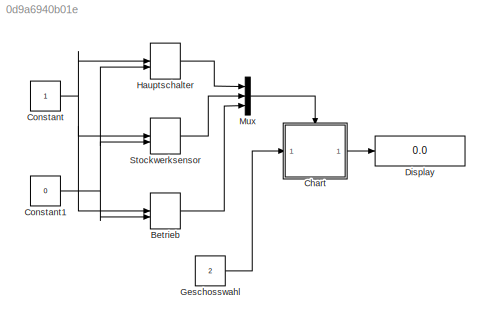
MODEL slx_0d9a6940b01e
KIND model
CONFIG AbsTol = auto
CONFIG EnableMultiTasking = off
CONFIG FixedStep = 1
CONFIG MaxStep = auto
CONFIG MinStep = auto
CONFIG RelTol = 1e-3
CONFIG SampleTimeConstraint = Unconstrained
CONFIG Solver = FixedStepDiscrete
CONFIG SolverName = FixedStepDiscrete
CONFIG StartTime = 0.0
CONFIG StopTime = inf
BLOCK [ManualSwitch] Betrieb
  CurrentSetting = 0
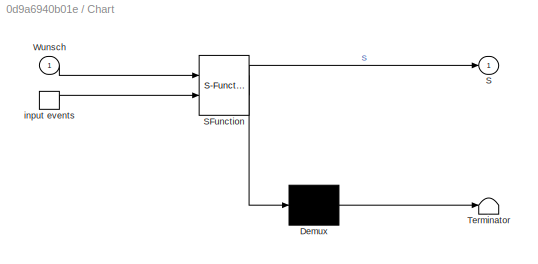
BLOCK [SubSystem] Chart
  BlockKeywords = __PRM__SERIALIZED__DATA__:Stateflow Chart,Stateflow Diagram
  ErrorFcn = Stateflow.Translate.translate
  PermitHierarchicalResolution = ExplicitOnly
  Ports = [1, 1, 0, 1]
  RequestExecContextInheritance = off
  SFBlockType = Chart
  TreatAsAtomicUnit = on
BLOCK [Demux] Chart/ Demux 
  Outputs = 1
  Ports = [1, 1]
BLOCK [S-Function] Chart/ SFunction 
  EnableBusSupport = on
  FunctionName = sf_sfun
  PortCounts = [2 2]
  Ports = [2, 2]
  SFcnIsStateOwnerBlock = off
  SFunctionDeploymentMode = off
  Tag = Stateflow S-Function Fahrstuhl 3
BLOCK [Terminator] Chart/ Terminator 
BLOCK [Outport] Chart/S
  IconDisplay = Port number
BLOCK [Inport] Chart/Wunsch
  IconDisplay = Port number
BLOCK [TriggerPort] Chart/input events
  Ports = [0, 1]
  ShowOutputPort = on
  StatesWhenEnabling = held
  TriggerType = either
  VariantControl = (inherit)
BLOCK [Constant] Constant
BLOCK [Constant] Constant1
  Value = 0
BLOCK [Display] Display
  Decimation = 1
  Ports = [1]
BLOCK [Constant] Geschosswahl
  Value = 2
BLOCK [ManualSwitch] Hauptschalter
BLOCK [Mux] Mux
  DisplayOption = bar
  Inputs = 3
  Ports = [3, 1]
BLOCK [ManualSwitch] Stockwerksensor
LINE Betrieb:1 -> Mux:3
LINE Chart:1 -> Display:1
NET Constant1:1 -> Betrieb:2, Hauptschalter:2, Stockwerksensor:2
NET Constant:1 -> Betrieb:1, Hauptschalter:1, Stockwerksensor:1
LINE Geschosswahl:1 -> Chart:1
LINE Hauptschalter:1 -> Mux:1
LINE Mux:1 -> Chart:trigger
LINE Stockwerksensor:1 -> Mux:2
note: NET lines group one-source signal fan-out (src -> all destinations, sorted); 1:1 wires keep LINE
CHART Chart states=13 transitions=19
  STATE_LABEL 'Tuer'
  STATE_LABEL 'Zu'
  STATE_LABEL 'Position'
  STATE_LABEL 'StockZwei\nentry: S=2;'
  STATE_LABEL 'StockEins\nentry: S=1;'
  STATE_LABEL 'EU\nentry: S=0;'
  STATE_LABEL 'UG\nentry: S=-1;'
  STATE_LABEL 'runter'
  STATE_LABEL 'hoch'
  STATE_LABEL 'runter'
  STATE_LABEL 'hoch'
  STATE_LABEL 'runter'
  STATE_LABEL 'hoch'
  STATE_LABEL 'H'
  STATE_LABEL 'Auf'
  STATE_LABEL 'schliessen'
  STATE_LABEL 'oeffnen'
  STATE_LABEL 'Zu'
  STATE_LABEL 'Position'
  STATE_LABEL 'StockZwei\nentry: S=2;'
  STATE_LABEL 'StockEins\nentry: S=1;'
  STATE_LABEL 'EU\nentry: S=0;'
  STATE_LABEL 'UG\nentry: S=-1;'
  STATE_LABEL 'runter'
  STATE_LABEL 'hoch'
  STATE_LABEL 'runter'
  STATE_LABEL 'hoch'
  STATE_LABEL 'runter'
  STATE_LABEL 'hoch'
  STATE_LABEL 'H'
  STATE_LABEL 'Position'
  STATE_LABEL 'StockZwei\nentry: S=2;'
  STATE_LABEL 'StockEins\nentry: S=1;'
  STATE_LABEL 'EU\nentry: S=0;'
  STATE_LABEL 'UG\nentry: S=-1;'
  STATE_LABEL 'runter'
  STATE_LABEL 'hoch'
  STATE_LABEL 'runter'
  STATE_LABEL 'hoch'
  STATE_LABEL 'runter'
